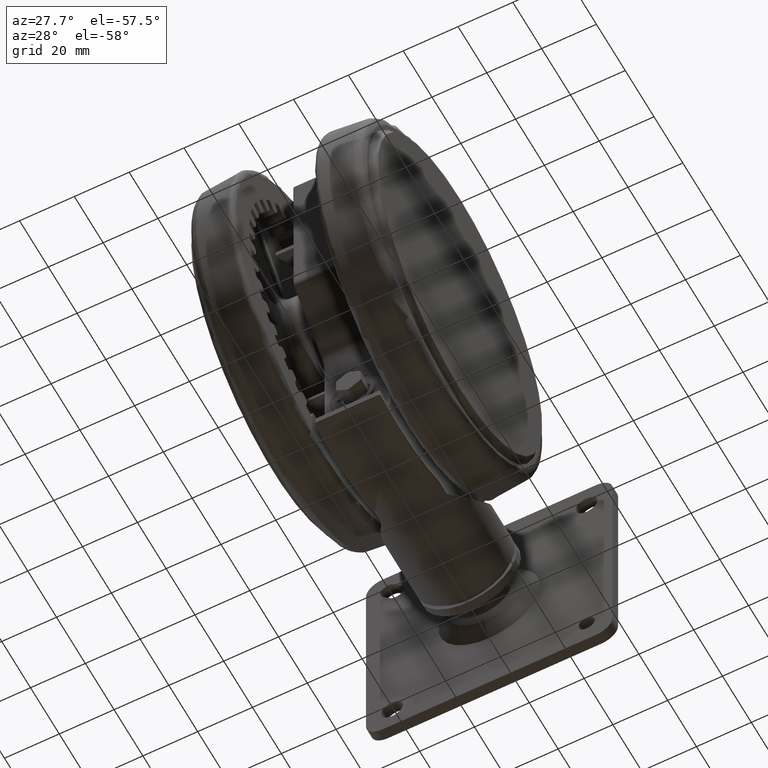
[diagram: clean part render]
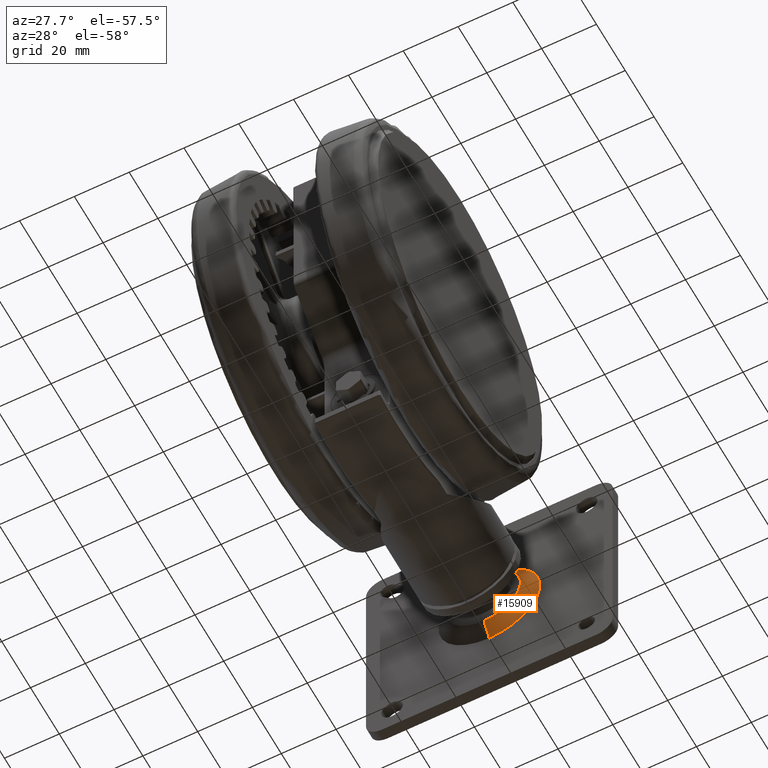
[diagram: same view with one face highlighted and labeled with its STEP entity id]
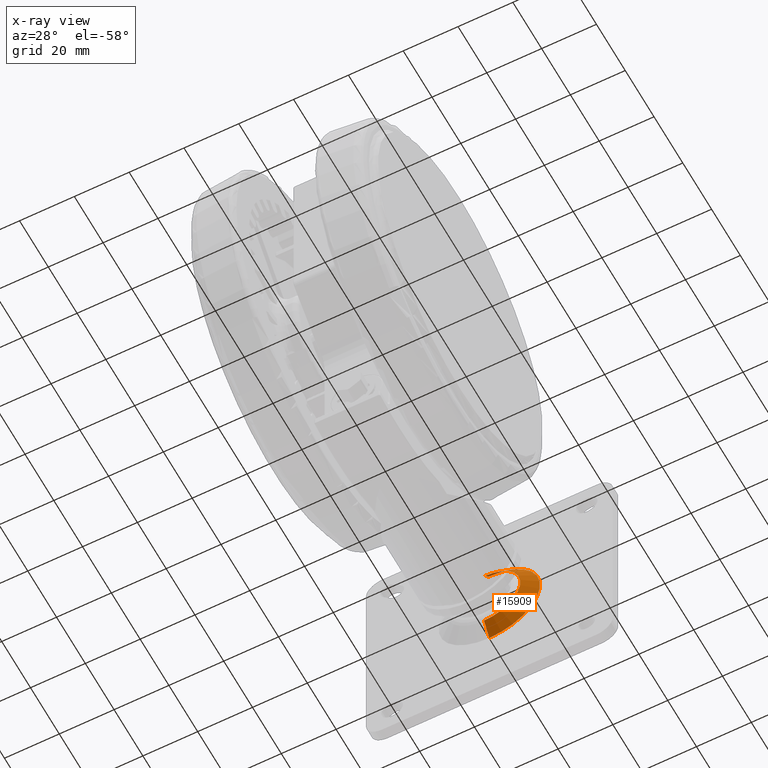
[diagram: x-ray of the same camera — body ghosted, the highlighted face saturated]
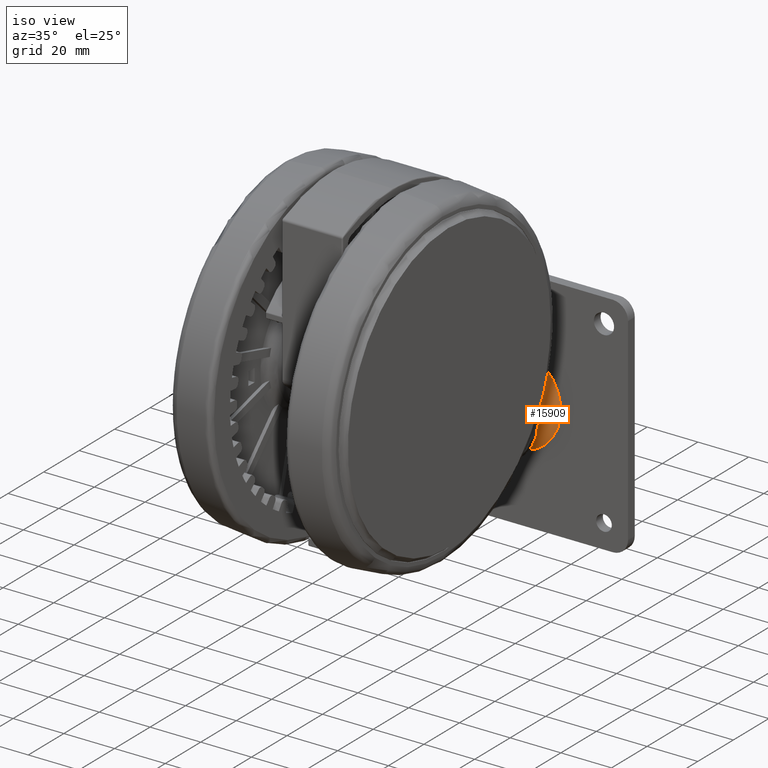
[diagram: same view with one face highlighted and labeled with its STEP entity id]
A machine part, auxiliary view. The second image highlights one B-rep face of the part: STEP entity #15909.
The next image is the same camera in x-ray: the body ghosted, the highlighted face saturated — about 2% of this face is hidden behind the body in this view.
A second angle (iso view) of the same face is appended — the face is thin or edge-on in the first view.
In plain terms, the highlighted conical surface has half-angle 54.13 deg.
Its self-contained STEP definition (entity closure, byte-faithful):
#832 = ORIENTED_EDGE ( 'NONE', *, *, #18442, .F. ) ;
#2158 = VECTOR ( 'NONE', #69556, 1000.000000000000100 ) ;
#2343 = CARTESIAN_POINT ( 'NONE',  ( 64.40849131421570900, 84.51530184899435500, -34.10000000000002300 ) ) ;
#2371 = ORIENTED_EDGE ( 'NONE', *, *, #32824, .T. ) ;
#10419 = DIRECTION ( 'NONE',  ( -0.01070575572498725000, -0.9999426917550610100, 3.328655038799715100E-029 ) ) ;
#14386 = LINE ( 'NONE', #52969, #37699 ) ;
#15909 = ADVANCED_FACE ( 'NONE', ( #55667 ), #19590, .T. ) ;
#18442 = EDGE_CURVE ( 'NONE', #39508, #23024, #63389, .T. ) ;
#18471 = CIRCLE ( 'NONE', #31854, 18.50000000000000000 ) ;
#19590 = CONICAL_SURFACE ( 'NONE', #67984, 18.50000000000000700, 0.9447498043013715700 ) ;
#23024 = VERTEX_POINT ( 'NONE', #50267 ) ;
#29685 = DIRECTION ( 'NONE',  ( 0.9999426917550609000, -0.01070575572499058200, -3.750753461571473500E-016 ) ) ;
#29825 = ORIENTED_EDGE ( 'NONE', *, *, #33114, .T. ) ;
#31854 = AXIS2_PLACEMENT_3D ( 'NONE', #44828, #10419, #50643 ) ;
#31922 = AXIS2_PLACEMENT_3D ( 'NONE', #33449, #73796, #39269 ) ;
#32824 = EDGE_CURVE ( 'NONE', #48595, #38075, #14386, .T. ) ;
#33114 = EDGE_CURVE ( 'NONE', #39508, #48595, #67453, .T. ) ;
#33449 = CARTESIAN_POINT ( 'NONE',  ( 45.86938617853856200, 80.96182154585318400, -34.10000000000001600 ) ) ;
#35006 = CARTESIAN_POINT ( 'NONE',  ( 27.41061171927836400, 84.91141481081894000, -34.10000000000001600 ) ) ;
#35714 = CARTESIAN_POINT ( 'NONE',  ( 59.18003042359279700, 80.81931287310145300, -34.10000000000002300 ) ) ;
#37699 = VECTOR ( 'NONE', #58778, 1000.000000000000100 ) ;
#38075 = VERTEX_POINT ( 'NONE', #2343 ) ;
#39269 = DIRECTION ( 'NONE',  ( -0.9999426917550609000, 0.01070575572499078700, 5.212742614358344400E-016 ) ) ;
#39508 = VERTEX_POINT ( 'NONE', #46897 ) ;
#44828 = CARTESIAN_POINT ( 'NONE',  ( 45.90955151674690900, 84.71335832990661200, -34.10000000000001600 ) ) ;
#46897 = CARTESIAN_POINT ( 'NONE',  ( 32.55874193348434900, 81.10433021860491500, -34.10000000000001600 ) ) ;
#47085 = DIRECTION ( 'NONE',  ( 0.01070575572499074200, 0.9999426917550610100, -3.425563113110533200E-029 ) ) ;
#48595 = VERTEX_POINT ( 'NONE', #35714 ) ;
#50267 = CARTESIAN_POINT ( 'NONE',  ( 27.41061171927845000, 84.91141481081886900, -34.10000000000001600 ) ) ;
#50643 = DIRECTION ( 'NONE',  ( -0.9999426917550611200, 0.01070575572498758600, 3.750753461571474900E-016 ) ) ;
#52293 = EDGE_CURVE ( 'NONE', #38075, #23024, #18471, .T. ) ;
#52969 = CARTESIAN_POINT ( 'NONE',  ( 64.40849131421562400, 84.51530184899429800, -34.10000000000002300 ) ) ;
#55667 = FACE_OUTER_BOUND ( 'NONE', #55829, .T. ) ;
#55829 = EDGE_LOOP ( 'NONE', ( #832, #29825, #2371, #59901 ) ) ;
#58778 = DIRECTION ( 'NONE',  ( 0.8165769092437512600, 0.5772366510279144400, -2.249174063864379200E-016 ) ) ;
#59901 = ORIENTED_EDGE ( 'NONE', *, *, #52293, .T. ) ;
#63389 = LINE ( 'NONE', #35006, #2158 ) ;
#67453 = CIRCLE ( 'NONE', #31922, 13.31140709843269800 ) ;
#67984 = AXIS2_PLACEMENT_3D ( 'NONE', #69988, #47085, #29685 ) ;
#69556 = DIRECTION ( 'NONE',  ( -0.8040309273882514400, 0.5945874769982870700, 1.256781091662201700E-016 ) ) ;
#69988 = CARTESIAN_POINT ( 'NONE',  ( 45.90955151674699400, 84.71335832990661200, -34.10000000000001600 ) ) ;
#73796 = DIRECTION ( 'NONE',  ( 0.01070575572499074200, 0.9999426917550610100, -3.425563113110533200E-029 ) ) ;